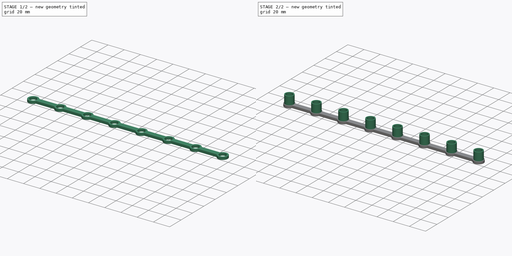
[diagram: build sequence overview — one tinted view per stage of 2, left to right]
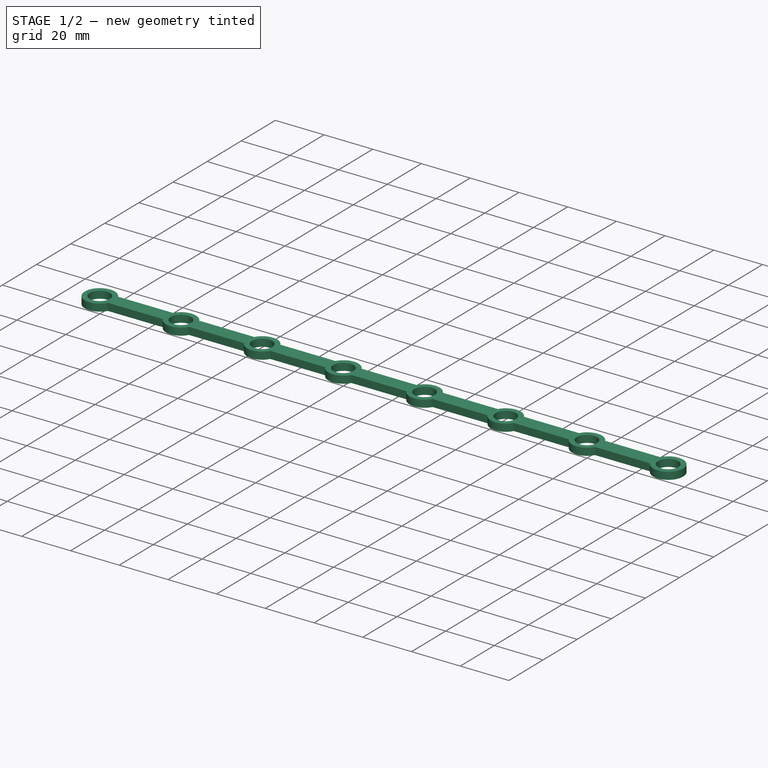
[diagram: stage 1 of 2 — iso view after this stage's code; geometry added in this stage tinted green]
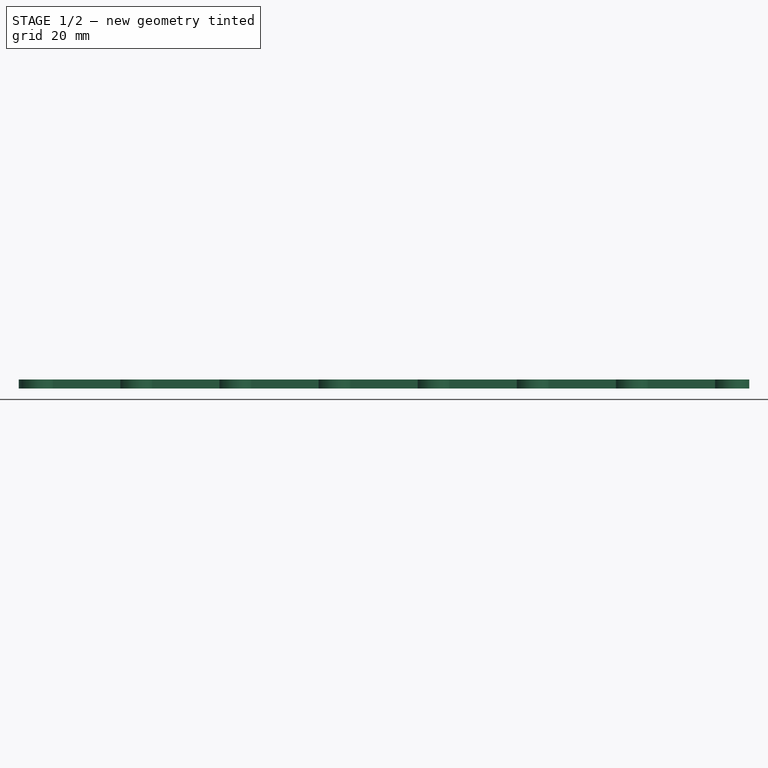
[diagram: stage 1 of 2 — front view after this stage's code; geometry added in this stage tinted green]
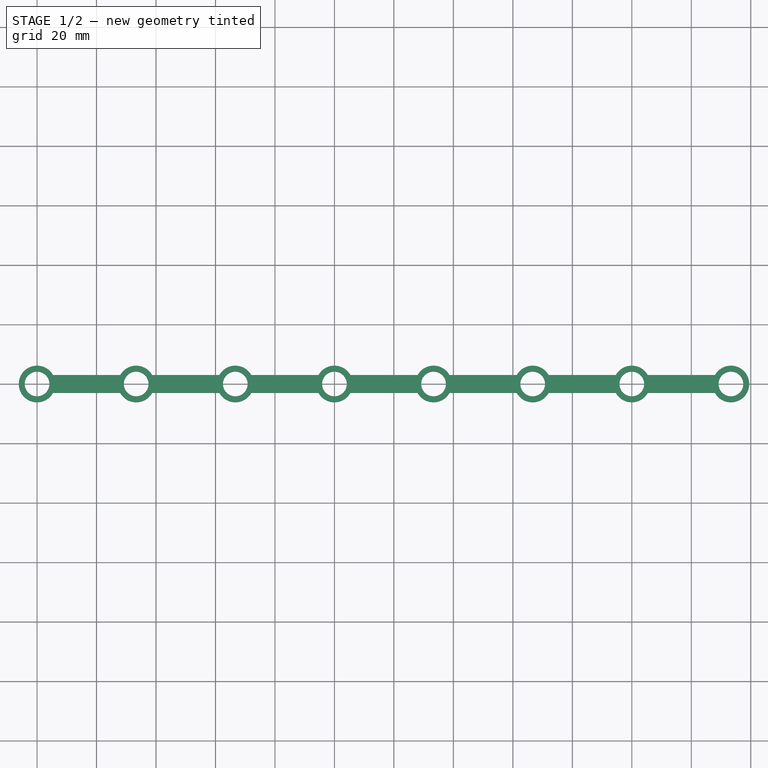
[diagram: stage 1 of 2 — top view after this stage's code; geometry added in this stage tinted green]
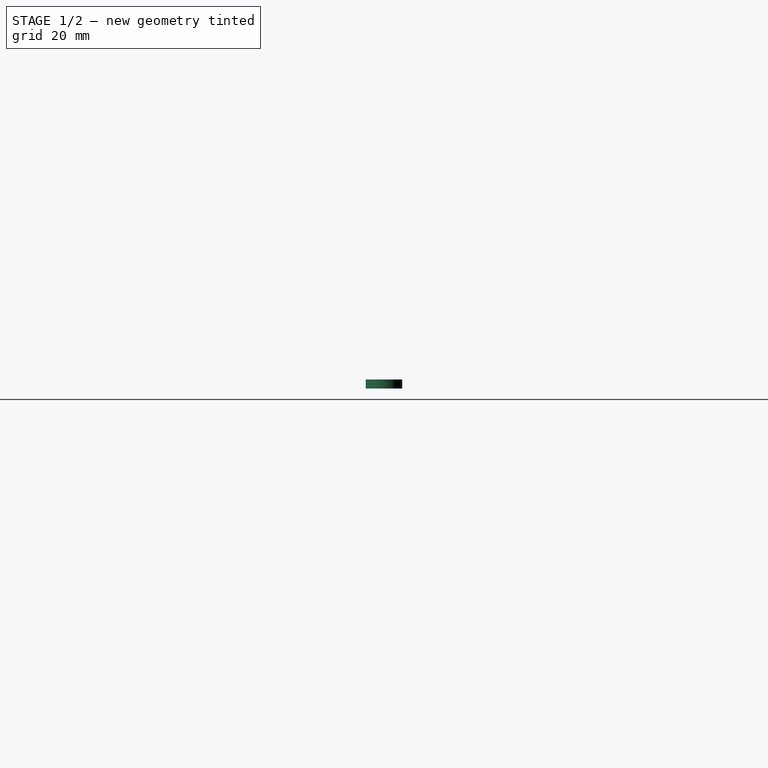
[diagram: stage 1 of 2 — right view after this stage's code; geometry added in this stage tinted green]
FCSTD DOCUMENT  (FreeCAD 0.19R24267 +148 (Git))
Label: Holder za LEDice
License: All rights reserved
LicenseURL: http://en.wikipedia.org/wiki/All_rights_reserved
objects: Sketcher::SketchObject×2, PartDesign::Pad×2, PartDesign::Body×1
note: 7 computed .brp shape members not serialized (recipe doc carries the construction recipe); baked Part::Feature solids carry a one-line shape summary decoded from their .brp

FEATURE [Sketcher::SketchObject] Sketch
  FullyConstrained = true
  MapMode = 5
  Support = -> [XY_Plane001]
  sketch-geometry (43):
    g0: Circle CenterX=0 CenterY=0 CenterZ=0 NormalX=0 NormalY=0 NormalZ=1 AngleXU=0 Radius=4.15
    g1: LineSegment StartX=0 StartY=0 StartZ=0 EndX=33.3333 EndY=0 EndZ=0
    g2: Circle CenterX=33.3333 CenterY=0 CenterZ=0 NormalX=0 NormalY=0 NormalZ=1 AngleXU=0 Radius=4.15
    g3: LineSegment StartX=33.3333 StartY=0 StartZ=0 EndX=66.6667 EndY=0 EndZ=0
    g4: Circle CenterX=66.6667 CenterY=0 CenterZ=0 NormalX=0 NormalY=0 NormalZ=1 AngleXU=0 Radius=4.15
    g5: LineSegment StartX=66.6667 StartY=0 StartZ=0 EndX=100 EndY=0 EndZ=0
    g6: Circle CenterX=100 CenterY=0 CenterZ=0 NormalX=0 NormalY=0 NormalZ=1 AngleXU=0 Radius=4.15
    g7: LineSegment StartX=5.36866 StartY=-3 StartZ=0 EndX=27.9647 EndY=-3 EndZ=0
    g8: LineSegment StartX=5.36866 StartY=3 StartZ=0 EndX=27.9647 EndY=3 EndZ=0
    g9: LineSegment StartX=38.702 StartY=3 StartZ=0 EndX=61.298 EndY=3 EndZ=0
    g10: LineSegment StartX=38.702 StartY=-3 StartZ=0 EndX=61.298 EndY=-3 EndZ=0
    g11: LineSegment StartX=72.0353 StartY=3 StartZ=0 EndX=94.6313 EndY=3 EndZ=0
    g12: LineSegment StartX=72.0353 StartY=-3 StartZ=0 EndX=94.6313 EndY=-3 EndZ=0
    g13: ArcOfCircle CenterX=0 CenterY=0 CenterZ=0 NormalX=0 NormalY=0 NormalZ=1 AngleXU=0 Radius=6.15 StartAngle=0.509573 EndAngle=5.77361
    g14: ArcOfCircle CenterX=33.3333 CenterY=0 CenterZ=0 NormalX=0 NormalY=0 NormalZ=1 AngleXU=0 Radius=6.15 StartAngle=3.65117 EndAngle=5.77361
    g15: ArcOfCircle CenterX=66.6667 CenterY=0 CenterZ=0 NormalX=0 NormalY=0 NormalZ=1 AngleXU=0 Radius=6.15 StartAngle=0.509573 EndAngle=2.63202
    g16: ArcOfCircle CenterX=100 CenterY=0 CenterZ=0 NormalX=0 NormalY=0 NormalZ=1 AngleXU=0 Radius=6.15 StartAngle=3.65117 EndAngle=5.77361
    g17: ArcOfCircle CenterX=33.3333 CenterY=0 CenterZ=0 NormalX=0 NormalY=0 NormalZ=1 AngleXU=0 Radius=6.15 StartAngle=0.509573 EndAngle=2.63202
    g18: ArcOfCircle CenterX=66.6667 CenterY=0 CenterZ=0 NormalX=0 NormalY=0 NormalZ=1 AngleXU=0 Radius=6.15 StartAngle=3.65117 EndAngle=5.77361
    g19: Circle CenterX=133.333 CenterY=0 CenterZ=0 NormalX=0 NormalY=0 NormalZ=1 AngleXU=0 Radius=4.15
    g20: ArcOfCircle CenterX=133.333 CenterY=0 CenterZ=0 NormalX=0 NormalY=0 NormalZ=1 AngleXU=0 Radius=6.15 StartAngle=0.509573 EndAngle=2.63202
    g21: Circle CenterX=166.667 CenterY=0 CenterZ=0 NormalX=0 NormalY=0 NormalZ=1 AngleXU=0 Radius=4.15
    g22: ArcOfCircle CenterX=166.667 CenterY=0 CenterZ=0 NormalX=0 NormalY=0 NormalZ=1 AngleXU=0 Radius=6.15 StartAngle=0.509573 EndAngle=2.63202
    g23: Circle CenterX=200 CenterY=0 CenterZ=0 NormalX=0 NormalY=0 NormalZ=1 AngleXU=0 Radius=4.15
    g24: ArcOfCircle CenterX=200 CenterY=0 CenterZ=0 NormalX=0 NormalY=0 NormalZ=1 AngleXU=0 Radius=6.15 StartAngle=0.509573 EndAngle=2.63202
    g25: Circle CenterX=233.333 CenterY=0 CenterZ=0 NormalX=0 NormalY=0 NormalZ=1 AngleXU=0 Radius=4.15
    g26: ArcOfCircle CenterX=233.333 CenterY=0 CenterZ=0 NormalX=0 NormalY=0 NormalZ=1 AngleXU=0 Radius=6.15 StartAngle=3.65117 EndAngle=8.9152
    g27: LineSegment StartX=100 StartY=0 StartZ=0 EndX=133.333 EndY=0 EndZ=0
    g28: LineSegment StartX=133.333 StartY=0 StartZ=0 EndX=166.667 EndY=0 EndZ=0
    g29: LineSegment StartX=166.667 StartY=0 StartZ=0 EndX=200 EndY=0 EndZ=0
    g30: LineSegment StartX=233.333 StartY=0 StartZ=0 EndX=200 EndY=0 EndZ=0
    g31: LineSegment StartX=105.369 StartY=3 StartZ=0 EndX=127.965 EndY=3 EndZ=0
    g32: LineSegment StartX=105.369 StartY=-3 StartZ=0 EndX=127.965 EndY=-3 EndZ=0
    g33: LineSegment StartX=138.702 StartY=3 StartZ=0 EndX=161.298 EndY=3 EndZ=0
    g34: LineSegment StartX=138.702 StartY=-3 StartZ=0 EndX=161.298 EndY=-3 EndZ=0
    g35: LineSegment StartX=172.035 StartY=3 StartZ=0 EndX=194.631 EndY=3 EndZ=0
    g36: LineSegment StartX=172.035 StartY=-3 StartZ=0 EndX=194.631 EndY=-3 EndZ=0
    g37: LineSegment StartX=205.369 StartY=3 StartZ=0 EndX=227.965 EndY=3 EndZ=0
    g38: LineSegment StartX=205.369 StartY=-3 StartZ=0 EndX=227.965 EndY=-3 EndZ=0
    g39: ArcOfCircle CenterX=200 CenterY=0 CenterZ=0 NormalX=0 NormalY=0 NormalZ=1 AngleXU=0 Radius=6.15 StartAngle=3.65117 EndAngle=5.77361
    g40: ArcOfCircle CenterX=166.667 CenterY=0 CenterZ=0 NormalX=0 NormalY=0 NormalZ=1 AngleXU=0 Radius=6.15 StartAngle=3.65117 EndAngle=5.77361
    g41: ArcOfCircle CenterX=133.333 CenterY=0 CenterZ=0 NormalX=0 NormalY=0 NormalZ=1 AngleXU=0 Radius=6.15 StartAngle=3.65117 EndAngle=5.77361
    g42: ArcOfCircle CenterX=100 CenterY=0 CenterZ=0 NormalX=0 NormalY=0 NormalZ=1 AngleXU=0 Radius=6.15 StartAngle=0.509573 EndAngle=2.63202
  constraints (125):
    c: Coincident(g0,g-1)
    c: Coincident(g1,g0)
    c: Horizontal(g1)
    c: DistanceX(g1,g1) = 33.3333
    c: Coincident(g2,g1)
    c: Coincident(g3,g2)
    c: PointOnObject(g3,g-1)
    c: Equal(g3,g1)
    c: Coincident(g4,g3)
    c: Coincident(g5,g4)
    c: PointOnObject(g5,g-1)
    c: Equal(g5,g3)
    c: Coincident(g6,g5)
    c: Horizontal(g7)
    c: Horizontal(g8)
    c: Equal(g8,g7)
    c: Horizontal(g9)
    c: Equal(g7,g9)
    c: Horizontal(g10)
    c: Equal(g10,g9)
    c: Horizontal(g11)
    c: Equal(g11,g10)
    c: Horizontal(g12)
    c: Equal(g12,g11)
    c: Equal(g0,g2)
    c: Equal(g0,g4)
    c: Equal(g0,g6)
    c: Radius(g0) = 4.15
    c: Coincident(g13,g0)
    c: Coincident(g14,g2)
    c: Coincident(g15,g4)
    c: Coincident(g16,g6)
    c: PointOnObject(g10,g15)
    c: Equal(g14,g13)
    c: Equal(g13,g15)
    c: Equal(g15,g16)
    c: DistanceY(g7,g8) = 6
    c: Radius(g13) = 6.15
    c: Coincident(g13,g8)
    c: Coincident(g13,g7)
    c: Coincident(g17,g8)
    c: Coincident(g14,g7)
    c: Equal(g14,g17)
    c: Coincident(g17,g9)
    c: Coincident(g14,g17)
    c: Coincident(g14,g10)
    c: Coincident(g42,g11)
    c: Coincident(g16,g12)
    c: Coincident(g15,g11)
    c: Coincident(g18,g12)
    c: Equal(g15,g18)
    c: Coincident(g15,g9)
    c: Coincident(g15,g18)
    c: PointOnObject(g18,g10)
    c: PointOnObject(g19,g-1)
    c: Coincident(g20,g19)
    c: PointOnObject(g21,g-1)
    c: Coincident(g22,g21)
    c: PointOnObject(g23,g-1)
    c: Coincident(g24,g23)
    c: PointOnObject(g25,g-1)
    c: Coincident(g26,g25)
    c: Equal(g16,g20)
    c: Equal(g20,g22)
    c: Equal(g22,g24)
    c: Equal(g24,g26)
    c: Equal(g23,g25)
    c: Equal(g25,g21)
    c: Equal(g21,g19)
    c: Equal(g19,g6)
    c: Coincident(g27,g6)
    c: Coincident(g27,g19)
    c: Coincident(g28,g19)
    c: Coincident(g28,g21)
    c: Coincident(g29,g21)
    c: Coincident(g29,g23)
    c: Coincident(g30,g25)
    c: Coincident(g30,g23)
    c: Equal(g30,g29)
    c: Equal(g29,g28)
    c: Equal(g28,g27)
    c: Equal(g27,g5)
    c: Horizontal(g31)
    c: PointOnObject(g32,g20)
    c: Horizontal(g32)
    c: Horizontal(g33)
    c: PointOnObject(g34,g22)
    c: Horizontal(g34)
    c: Horizontal(g35)
    c: PointOnObject(g36,g24)
    c: Horizontal(g36)
    c: Horizontal(g37)
    c: Horizontal(g38)
    c: Equal(g11,g31)
    c: Equal(g31,g32)
    c: Equal(g32,g34)
    c: Equal(g34,g33)
    c: Equal(g33,g35)
    c: Equal(g35,g36)
    c: Equal(g36,g37)
    c: Equal(g37,g38)
    c: Coincident(g26,g37)
    c: Coincident(g26,g38)
    c: Coincident(g39,g38)
    c: Coincident(g24,g37)
    c: Equal(g24,g39)
    c: Coincident(g24,g35)
    c: Coincident(g24,g39)
    c: PointOnObject(g39,g36)
    c: Coincident(g22,g35)
    c: Coincident(g40,g36)
    c: Equal(g22,g40)
    c: Coincident(g22,g33)
    c: Coincident(g22,g40)
    c: PointOnObject(g40,g34)
    c: Coincident(g20,g33)
    c: Coincident(g41,g34)
    c: Equal(g20,g41)
    c: Coincident(g20,g31)
    c: Coincident(g20,g41)
    c: PointOnObject(g41,g32)
    c: Equal(g16,g42)
    c: Coincident(g42,g31)
    c: Coincident(g16,g42)
    c: Coincident(g16,g32)
FEATURE [PartDesign::Pad] Pad
  Direction = (1,1,1)
  Length = 3
  Length2 = 100
  Profile = -> Sketch
  Type = 0
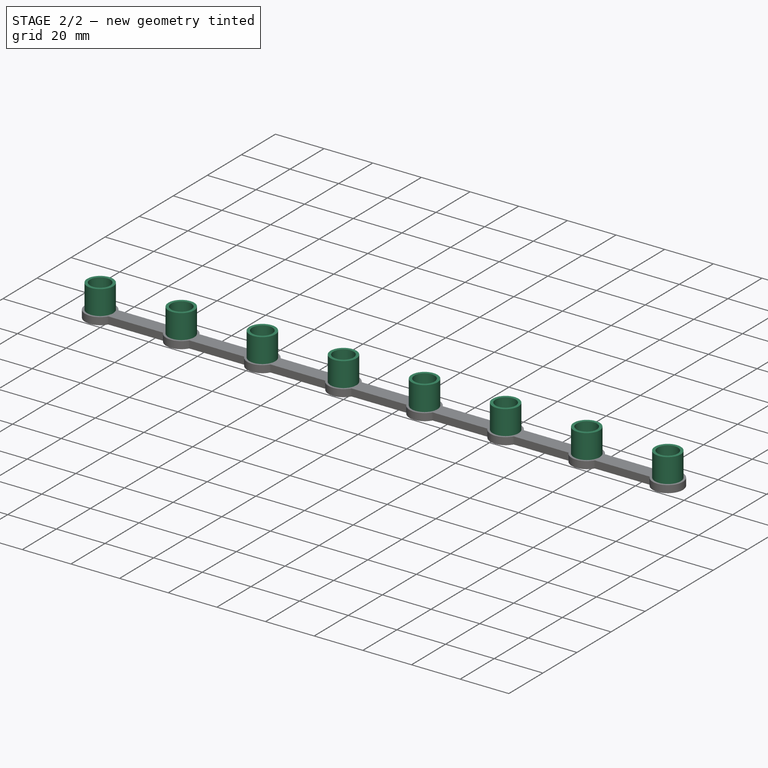
[diagram: stage 2 of 2 — iso view after this stage's code; geometry added in this stage tinted green]
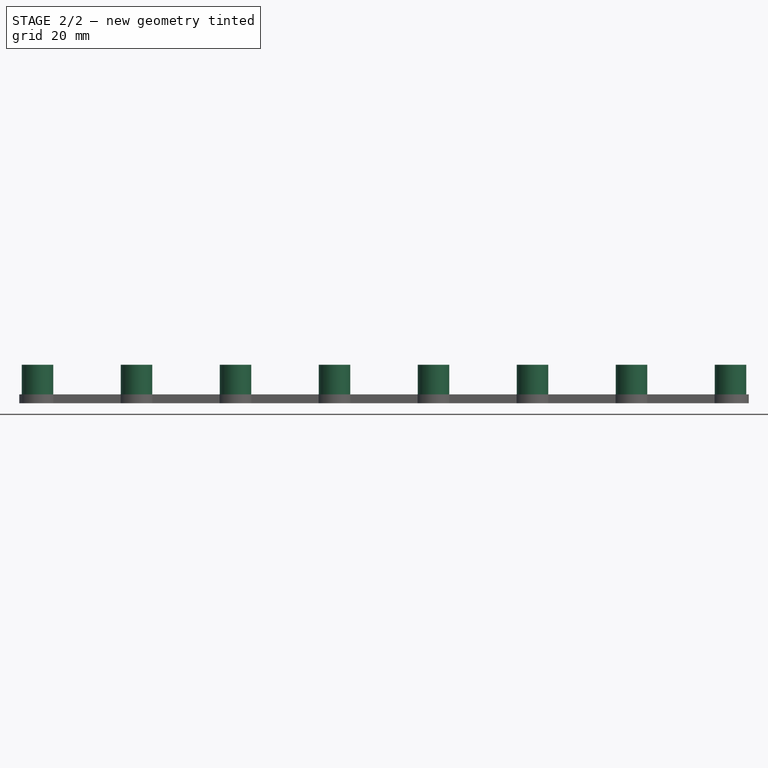
[diagram: stage 2 of 2 — front view after this stage's code; geometry added in this stage tinted green]
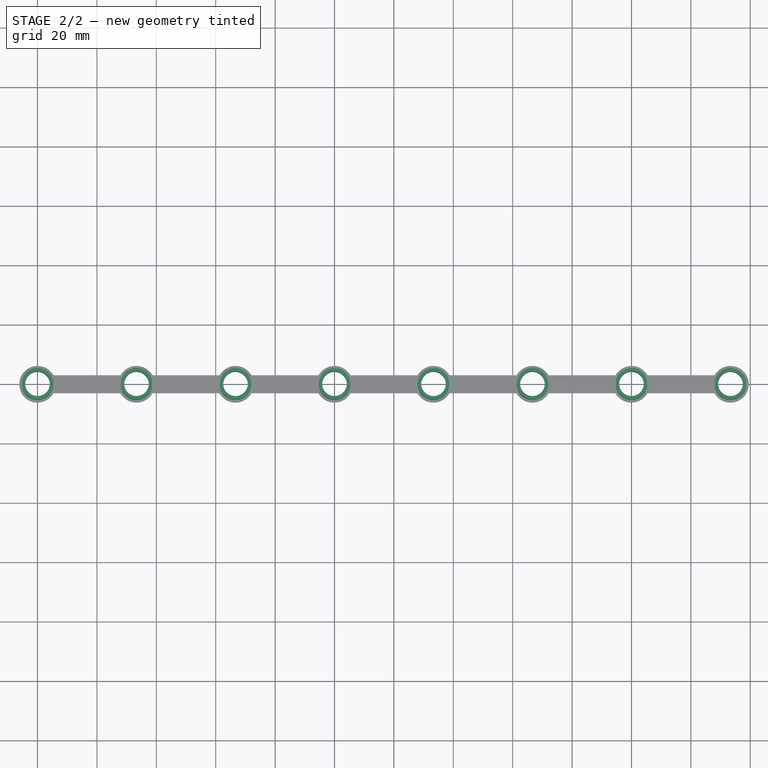
[diagram: stage 2 of 2 — top view after this stage's code; geometry added in this stage tinted green]
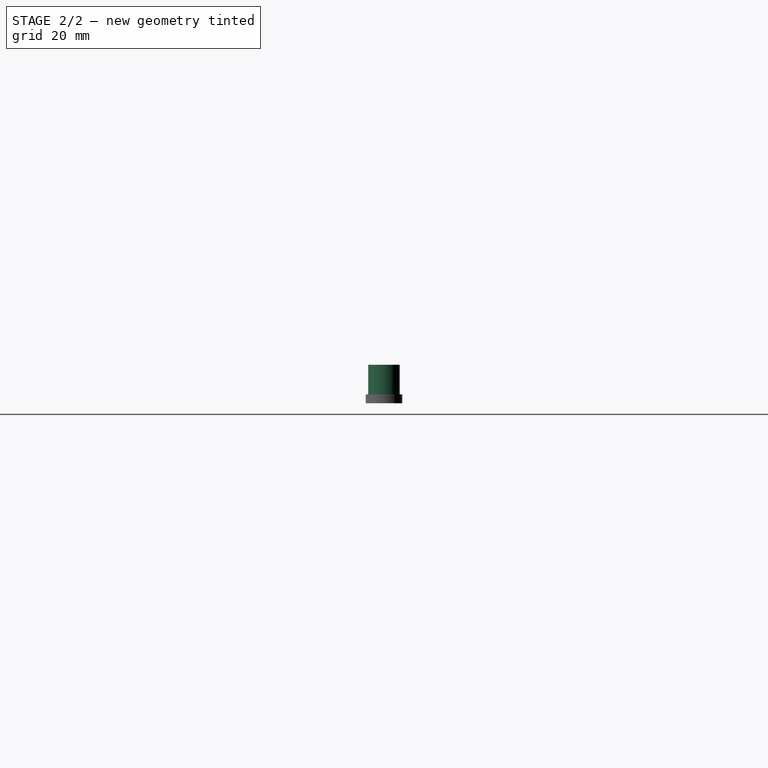
[diagram: stage 2 of 2 — right view after this stage's code; geometry added in this stage tinted green]
FEATURE [Sketcher::SketchObject] Sketch001
  FullyConstrained = true
  MapMode = 5
  Placement = pos=(0,0,3) rot=(0,0,1;0rad)
  Support = -> [Pad]
  sketch-geometry (23):
    g0: Circle CenterX=0 CenterY=0 CenterZ=0 NormalX=0 NormalY=0 NormalZ=1 AngleXU=0 Radius=4.15
    g1: Circle CenterX=0 CenterY=0 CenterZ=0 NormalX=0 NormalY=0 NormalZ=1 AngleXU=0 Radius=5.3
    g2: LineSegment StartX=0 StartY=0 StartZ=0 EndX=33.3333 EndY=0 EndZ=0
    g3: Circle CenterX=33.3333 CenterY=0 CenterZ=0 NormalX=0 NormalY=0 NormalZ=1 AngleXU=0 Radius=4.15
    g4: Circle CenterX=33.3333 CenterY=0 CenterZ=0 NormalX=0 NormalY=0 NormalZ=1 AngleXU=0 Radius=5.3
    g5: LineSegment StartX=33.3333 StartY=0 StartZ=0 EndX=66.6667 EndY=0 EndZ=0
    g6: Circle CenterX=66.6667 CenterY=0 CenterZ=0 NormalX=0 NormalY=0 NormalZ=1 AngleXU=0 Radius=4.15
    g7: Circle CenterX=66.6667 CenterY=0 CenterZ=0 NormalX=0 NormalY=0 NormalZ=1 AngleXU=0 Radius=5.3
    g8: LineSegment StartX=66.6667 StartY=0 StartZ=0 EndX=100 EndY=0 EndZ=0
    g9: Circle CenterX=100 CenterY=0 CenterZ=0 NormalX=0 NormalY=0 NormalZ=1 AngleXU=0 Radius=4.15
    g10: Circle CenterX=100 CenterY=0 CenterZ=0 NormalX=0 NormalY=0 NormalZ=1 AngleXU=0 Radius=5.3
    g11: LineSegment StartX=100 StartY=0 StartZ=0 EndX=133.333 EndY=0 EndZ=0
    g12: LineSegment StartX=133.333 StartY=0 StartZ=0 EndX=166.667 EndY=0 EndZ=0
    g13: LineSegment StartX=166.667 StartY=0 StartZ=0 EndX=200 EndY=0 EndZ=0
    g14: LineSegment StartX=200 StartY=0 StartZ=0 EndX=233.333 EndY=0 EndZ=0
    g15: Circle CenterX=133.333 CenterY=0 CenterZ=0 NormalX=0 NormalY=0 NormalZ=1 AngleXU=0 Radius=4.15
    g16: Circle CenterX=133.333 CenterY=0 CenterZ=0 NormalX=0 NormalY=0 NormalZ=1 AngleXU=0 Radius=5.3
    g17: Circle CenterX=166.667 CenterY=0 CenterZ=0 NormalX=0 NormalY=0 NormalZ=1 AngleXU=0 Radius=4.15
    g18: Circle CenterX=166.667 CenterY=0 CenterZ=0 NormalX=0 NormalY=0 NormalZ=1 AngleXU=0 Radius=5.3
    g19: Circle CenterX=200 CenterY=0 CenterZ=0 NormalX=0 NormalY=0 NormalZ=1 AngleXU=0 Radius=4.15
    g20: Circle CenterX=200 CenterY=0 CenterZ=0 NormalX=0 NormalY=0 NormalZ=1 AngleXU=0 Radius=5.3
    g21: Circle CenterX=233.333 CenterY=0 CenterZ=0 NormalX=0 NormalY=0 NormalZ=1 AngleXU=0 Radius=4.15
    g22: Circle CenterX=233.333 CenterY=0 CenterZ=0 NormalX=0 NormalY=0 NormalZ=1 AngleXU=0 Radius=5.3
  constraints (53):
    c: Coincident(g0,g-1)
    c: Radius(g0) = 4.15
    c: Coincident(g1,g0)
    c: Radius(g1) = 5.3
    c: Coincident(g2,g0)
    c: PointOnObject(g2,g-1)
    c: DistanceX(g2,g2) = 33.3333
    c: Coincident(g3,g2)
    c: Coincident(g4,g3)
    c: Coincident(g5,g3)
    c: PointOnObject(g5,g-1)
    c: Coincident(g6,g5)
    c: Coincident(g7,g6)
    c: Coincident(g8,g6)
    c: PointOnObject(g8,g-1)
    c: Coincident(g9,g8)
    c: Coincident(g10,g9)
    c: Coincident(g11,g9)
    c: PointOnObject(g11,g-1)
    c: Coincident(g12,g11)
    c: PointOnObject(g12,g-1)
    c: Coincident(g13,g12)
    c: PointOnObject(g13,g-1)
    c: Coincident(g14,g13)
    c: PointOnObject(g14,g-1)
    c: Equal(g2,g5)
    c: Equal(g5,g8)
    c: Equal(g8,g11)
    c: Equal(g11,g14)
    c: Equal(g14,g13)
    c: Equal(g13,g12)
    c: Coincident(g15,g11)
    c: Coincident(g16,g15)
    c: Coincident(g17,g12)
    c: Coincident(g18,g17)
    c: Coincident(g19,g13)
    c: Coincident(g20,g19)
    c: Coincident(g21,g14)
    c: Coincident(g22,g21)
    c: Equal(g18,g16)
    c: Equal(g16,g10)
    c: Equal(g10,g7)
    c: Equal(g7,g4)
    c: Equal(g4,g1)
    c: Equal(g1,g20)
    c: Equal(g20,g22)
    c: Equal(g0,g3)
    c: Equal(g3,g6)
    c: Equal(g6,g9)
    c: Equal(g9,g15)
    c: Equal(g15,g17)
    c: Equal(g17,g19)
    c: Equal(g19,g21)
FEATURE [PartDesign::Pad] Pad001
  BaseFeature = -> Pad
  Direction = (1,1,1)
  Length = 10
  Length2 = 100
  Profile = -> Sketch001
  Type = 0
FEATURE [PartDesign::Body] Body001
  Group = -> [Sketch,Pad,Sketch001,Pad001]
  Origin = -> Origin001
  Tip = -> Pad001
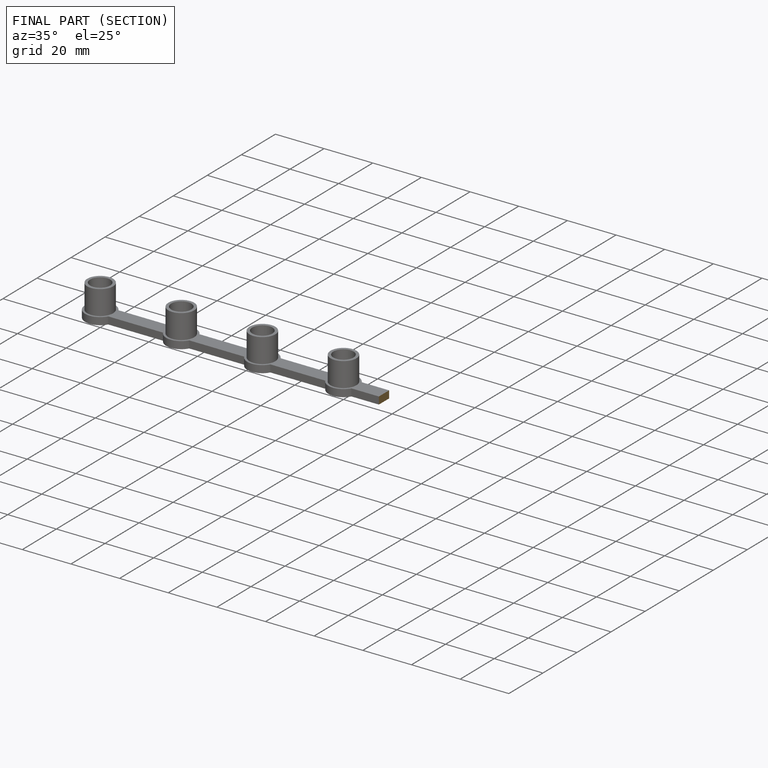
[diagram: finished part — half-section view (interior)]
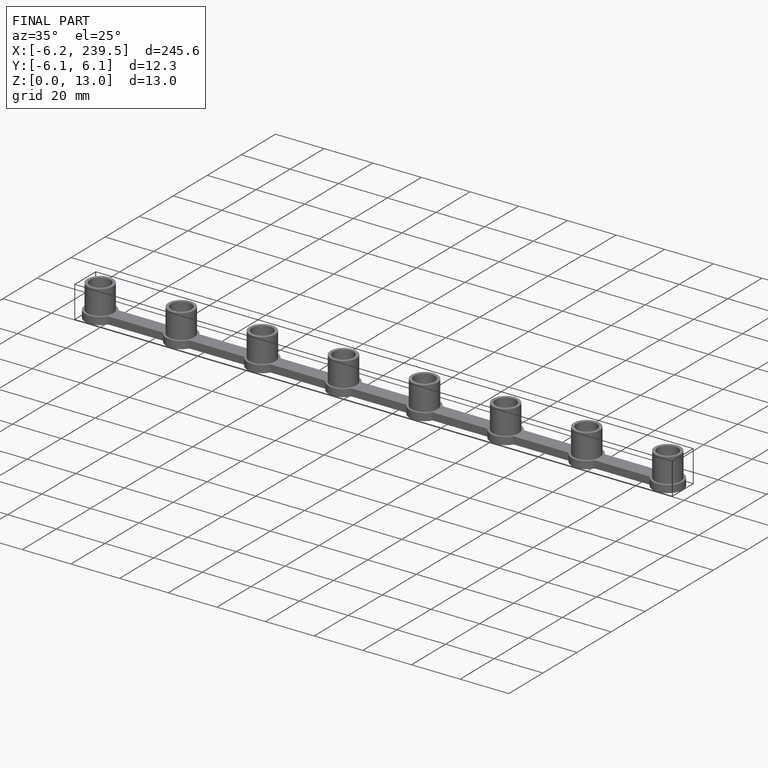
[diagram: finished part — iso view with bounding-box wireframe]
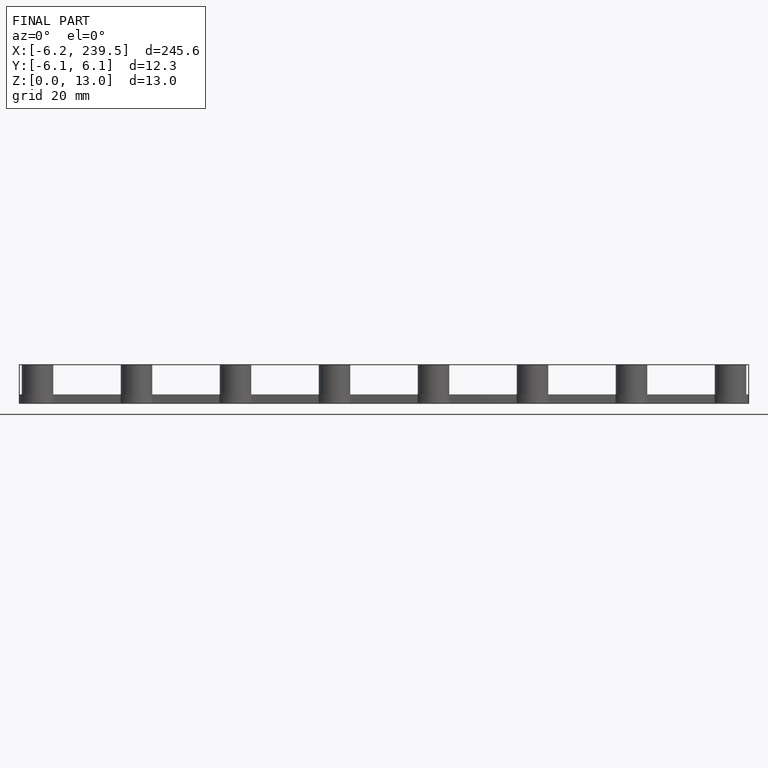
[diagram: finished part — front view with bounding-box wireframe]
